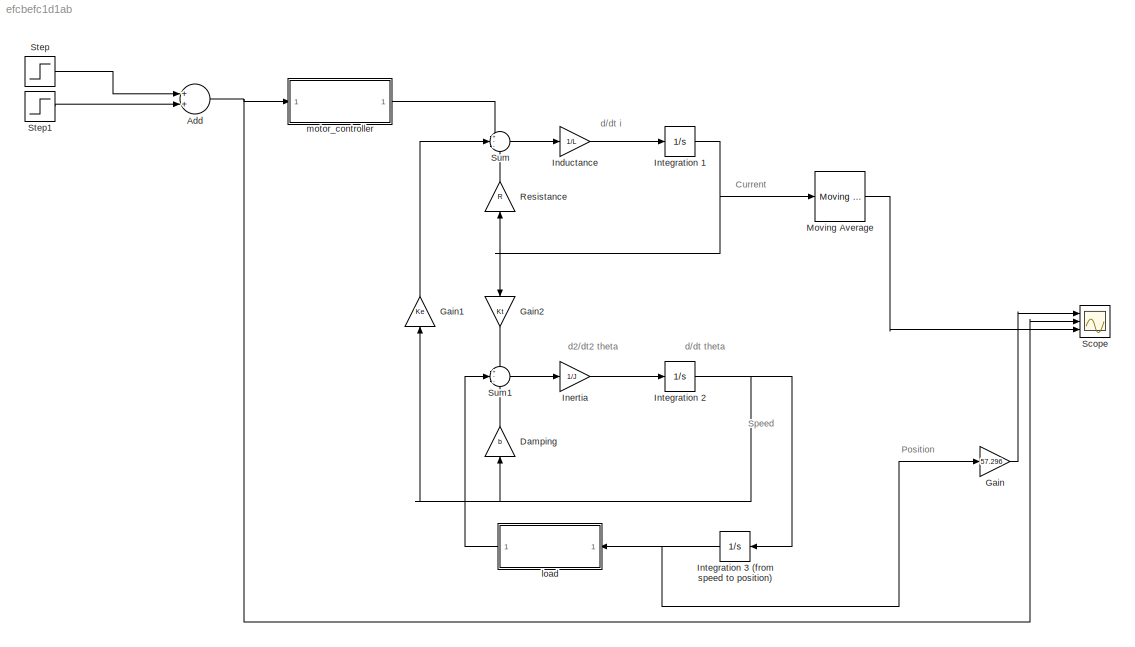
MODEL slx_efcbefc1d1ab
KIND model
CONFIG AbsTol = auto
CONFIG EnableMultiTasking = off
CONFIG FixedStep = auto
CONFIG MaxStep = auto
CONFIG MinStep = auto
CONFIG RelTol = 1e-3
CONFIG SampleTimeConstraint = Unconstrained
CONFIG Solver = VariableStepAuto
CONFIG SolverName = VariableStepAuto
CONFIG StartTime = 0.0
CONFIG StopTime = 10.0
BLOCK [Sum] Add
  InputSameDT = off
  OutDataTypeStr = Inherit: Inherit via internal rule
  Ports = [2, 1]
  SaturateOnIntegerOverflow = off
BLOCK [Gain] Damping
  Gain = b
  OutDataTypeStr = Inherit: Inherit via internal rule
  ParamDataTypeStr = Inherit: Inherit via internal rule
  SaturateOnIntegerOverflow = off
BLOCK [Gain] Gain
  Gain = 57.296
  OutDataTypeStr = Inherit: Inherit via internal rule
  ParamDataTypeStr = Inherit: Inherit via internal rule
  SaturateOnIntegerOverflow = off
BLOCK [Gain] Gain1
  Gain = Ke
  OutDataTypeStr = Inherit: Inherit via internal rule
  ParamDataTypeStr = Inherit: Inherit via internal rule
  SaturateOnIntegerOverflow = off
BLOCK [Gain] Gain2
  Gain = Kt
  OutDataTypeStr = Inherit: Inherit via internal rule
  ParamDataTypeStr = Inherit: Inherit via internal rule
  SaturateOnIntegerOverflow = off
BLOCK [Gain] Inductance
  Gain = 1/L
  OutDataTypeStr = Inherit: Inherit via internal rule
  ParamDataTypeStr = Inherit: Inherit via internal rule
  SaturateOnIntegerOverflow = off
BLOCK [Gain] Inertia
  Gain = 1/J
  OutDataTypeStr = Inherit: Inherit via internal rule
  ParamDataTypeStr = Inherit: Inherit via internal rule
  SaturateOnIntegerOverflow = off
BLOCK [Integrator] Integration 1 
  Ports = [1, 1]
BLOCK [Integrator] Integration 2
  Ports = [1, 1]
BLOCK [Integrator] Integration 3 (from speed to position)
  Ports = [1, 1]
BLOCK [Reference] Moving Average  REF=dspstat3/Moving
Average
  Ports = [1, 1]
  SourceBlock = dspstat3/Moving\nAverage
  SourceProductBaseCode = DS
  SourceProductName = DSP System Toolbox
  SourceType = dsp.simulink.MovingAverage
BLOCK [Gain] Resistance
  Gain = R
  OutDataTypeStr = Inherit: Inherit via internal rule
  ParamDataTypeStr = Inherit: Inherit via internal rule
  SaturateOnIntegerOverflow = off
BLOCK [Scope] Scope
  Floating = off
  NumInputPorts = 3
  Ports = [3]
  ScopeSpecificationString = Simulink.scopes.TimeScopeBlockCfg('CurrentConfiguration', extmgr.ConfigurationSet(extmgr.Configuration('Core','General UI',true),extmgr.Configuration('Core','Source UI',true),extmgr.Configuration('Sources','WiredSimulink',true),extmgr.Configuration('Visuals','Time Domain',true,'SerializedDisplays',{struct('MinYLimReal','-1.5625','MaxYLimReal','14.0625','YLabelReal','','MinYLimMag','0.00000','MaxYL...<+1344ch>
BLOCK [Step] Step
  After = 1.125
  SampleTime = 0
BLOCK [Step] Step1
  After = 3.875
  SampleTime = 0
  Time = 2
BLOCK [Sum] Sum
  IconShape = round
  InputSameDT = off
  Inputs = +--
  OutDataTypeStr = Inherit: Inherit via internal rule
  Ports = [3, 1]
  SaturateOnIntegerOverflow = off
BLOCK [Sum] Sum1
  IconShape = round
  InputSameDT = off
  Inputs = +--
  OutDataTypeStr = Inherit: Inherit via internal rule
  Ports = [3, 1]
  SaturateOnIntegerOverflow = off
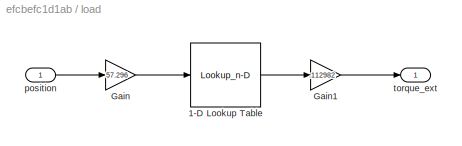
BLOCK [SubSystem] load
  Ports = [1, 1]
  RequestExecContextInheritance = off
BLOCK [Lookup_n-D] load/1-D Lookup Table
  BreakpointsForDimension1 = [0, 0.1, 58, 58.1]
  InternalRulePriority = Speed
  NumberOfTableDimensions = 1
  Ports = [1, 1]
  RndMeth = Simplest
  Table = [0, 61, 76.25 , 100]
BLOCK [Gain] load/Gain
  Gain = 57.296
  OutDataTypeStr = Inherit: Inherit via internal rule
  ParamDataTypeStr = Inherit: Inherit via internal rule
  SaturateOnIntegerOverflow = off
BLOCK [Gain] load/Gain1
  Gain = .112982
  OutDataTypeStr = Inherit: Inherit via internal rule
  ParamDataTypeStr = Inherit: Inherit via internal rule
  SaturateOnIntegerOverflow = off
BLOCK [Inport] load/position
  IconDisplay = Port number
BLOCK [Outport] load/torque_ext
  IconDisplay = Port number
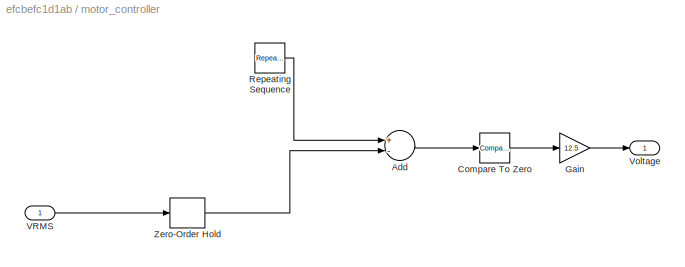
BLOCK [SubSystem] motor_controller
  Ports = [1, 1]
  RequestExecContextInheritance = off
BLOCK [Sum] motor_controller/Add
  InputSameDT = off
  Inputs = +-
  OutDataTypeStr = Inherit: Inherit via internal rule
  Ports = [2, 1]
  SaturateOnIntegerOverflow = off
BLOCK [Reference] motor_controller/Compare To Zero  REF=simulink/Logic and Bit
Operations/Compare
To Zero
  Ports = [1, 1]
  SourceBlock = simulink/Logic and Bit\nOperations/Compare\nTo Zero
  SourceProductBaseCode = SL
  SourceProductName = Simulink
  SourceType = Compare To Zero
BLOCK [Gain] motor_controller/Gain
  Gain = 12.5
  OutDataTypeStr = Inherit: Inherit via internal rule
  ParamDataTypeStr = Inherit: Inherit via internal rule
  SaturateOnIntegerOverflow = off
BLOCK [Reference] motor_controller/Repeating Sequence  REF=simulink/Sources/Repeating
Sequence
  Ports = [0, 1]
  SourceBlock = simulink/Sources/Repeating\nSequence
  SourceProductBaseCode = SL
  SourceProductName = Simulink
  SourceType = Repeating table
BLOCK [Inport] motor_controller/VRMS
  IconDisplay = Port number
BLOCK [Outport] motor_controller/Voltage
  IconDisplay = Port number
BLOCK [ZeroOrderHold] motor_controller/Zero-Order Hold
  SampleTime = .01
ANNOTATION (root): Current
ANNOTATION (root): Position
ANNOTATION (root): Speed
ANNOTATION (root): d/dt i
ANNOTATION (root): d/dt theta
ANNOTATION (root): d2/dt2 theta
NET Add:1 -> Scope:2, motor_controller:1
LINE Damping:1 -> Sum1:3
LINE Gain1:1 -> Sum:2
LINE Gain2:1 -> Sum1:1
LINE Gain:1 -> Scope:1
LINE Inductance:1 -> Integration 1 :1
LINE Inertia:1 -> Integration 2:1
NET Integration 1 :1 -> Gain2:1, Moving Average:1, Resistance:1
NET Integration 2:1 -> Damping:1, Gain1:1, Integration 3 (from speed to position):1
NET Integration 3 (from speed to position):1 -> Gain:1, load:1
LINE Moving Average:1 -> Scope:3
LINE Resistance:1 -> Sum:3
LINE Step1:1 -> Add:2
LINE Step:1 -> Add:1
LINE Sum1:1 -> Inertia:1
LINE Sum:1 -> Inductance:1
LINE load/1-D Lookup Table:1 -> load/Gain1:1
LINE load/Gain1:1 -> load/torque_ext:1
LINE load/Gain:1 -> load/1-D Lookup Table:1
LINE load/position:1 -> load/Gain:1
LINE load:1 -> Sum1:2
LINE motor_controller/Add:1 -> motor_controller/Compare To Zero:1
LINE motor_controller/Compare To Zero:1 -> motor_controller/Gain:1
LINE motor_controller/Gain:1 -> motor_controller/Voltage:1
LINE motor_controller/Repeating Sequence:1 -> motor_controller/Add:1
LINE motor_controller/VRMS:1 -> motor_controller/Zero-Order Hold:1
LINE motor_controller/Zero-Order Hold:1 -> motor_controller/Add:2
LINE motor_controller:1 -> Sum:1
note: NET lines group one-source signal fan-out (src -> all destinations, sorted); 1:1 wires keep LINE
